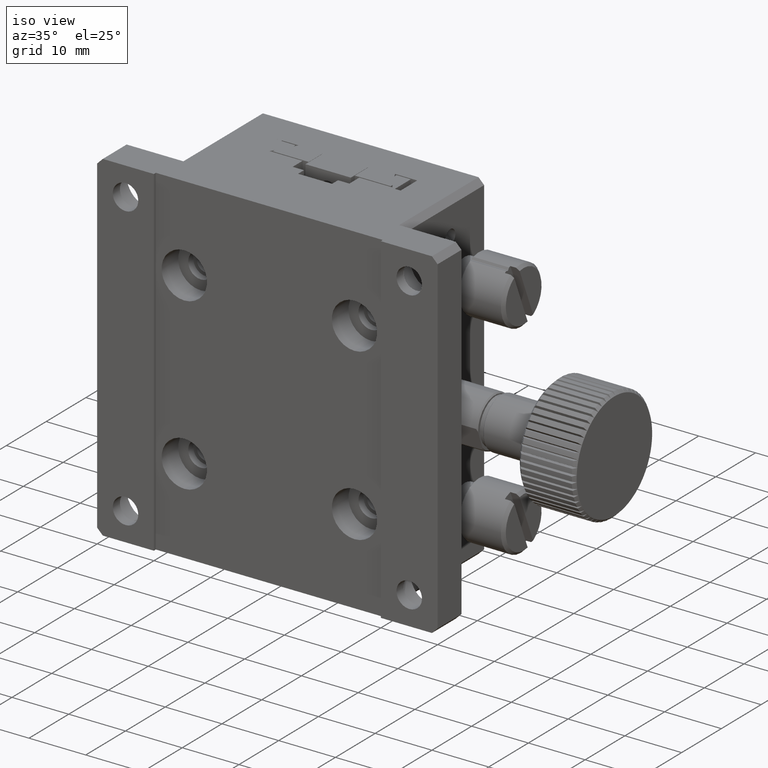
[diagram: clean part render]
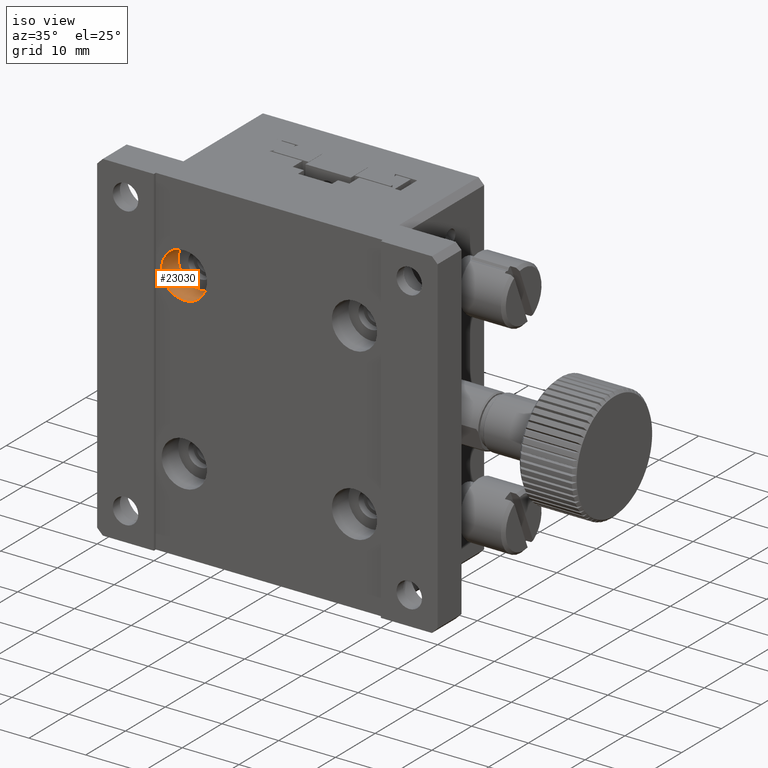
[diagram: same view with one face highlighted and labeled with its STEP entity id]
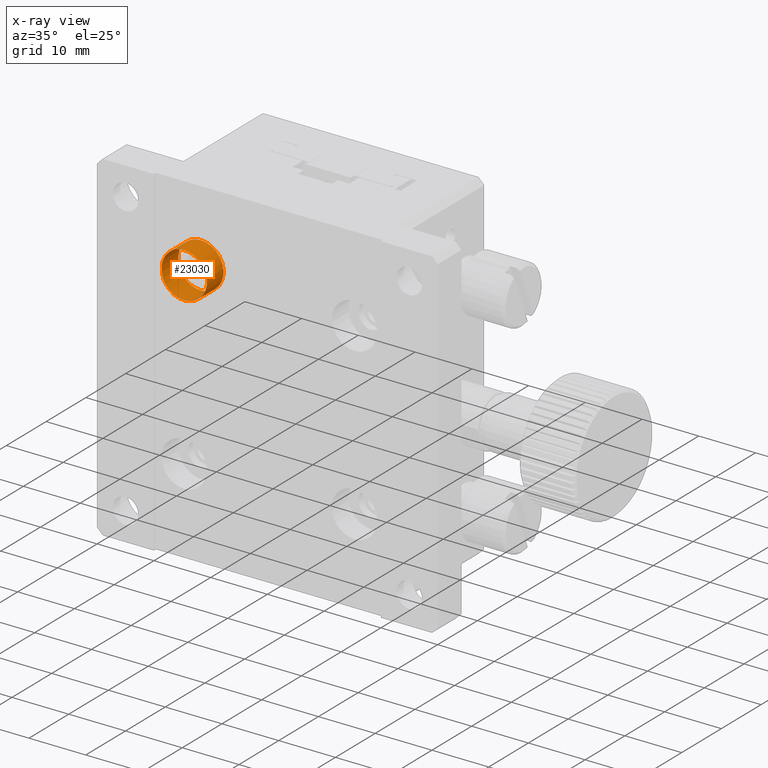
[diagram: x-ray of the same camera — body ghosted, the highlighted face saturated]
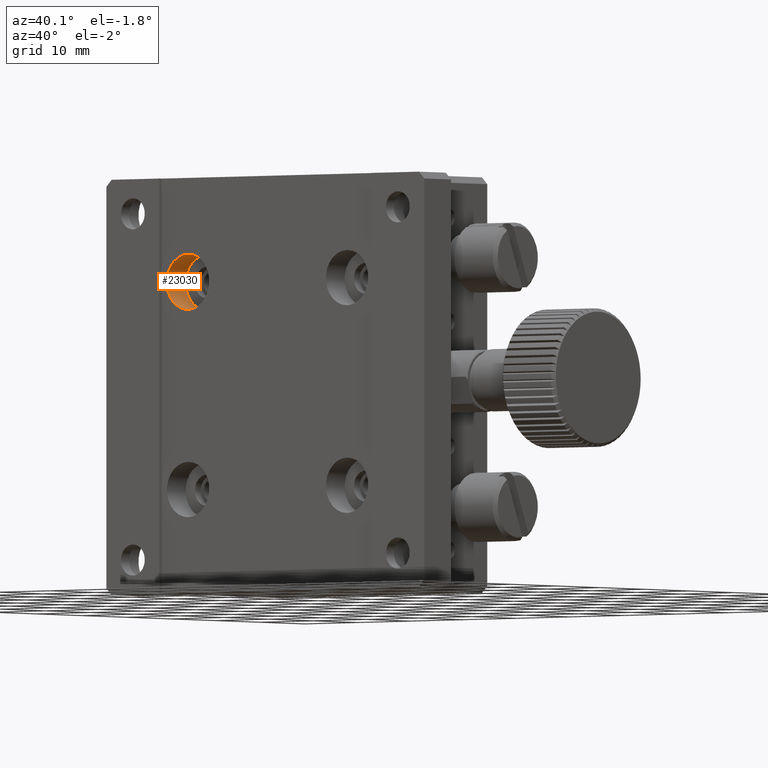
[diagram: same view with one face highlighted and labeled with its STEP entity id]
A machine part, iso view. The second image highlights one B-rep face of the part: STEP entity #23030.
The next image is the same camera in x-ray: the body ghosted, the highlighted face saturated — about 0% of this face is hidden behind the body in this view.
A second angle (auxiliary view) of the same face is appended — the face is thin or edge-on in the first view.
In plain terms, the highlighted cylindrical surface (bore or boss wall) has radius 4 mm, axis along (-0, -1, -0).
Its self-contained STEP definition (entity closure, byte-faithful):
#4610 = CARTESIAN_POINT ( 'NONE',  ( 15.00000000000001066, 0.5000000000000000000, 44.99999999999999289 ) ) ;
#8436 = AXIS2_PLACEMENT_3D ( 'NONE', #4610, #104581, #31216 ) ;
#11287 = CYLINDRICAL_SURFACE ( 'NONE', #58620, 3.999999999999996447 ) ;
#11465 = AXIS2_PLACEMENT_3D ( 'NONE', #74603, #24101, #106691 ) ;
#12369 = DIRECTION ( 'NONE',  ( 0.000000000000000000, 0.000000000000000000, -1.000000000000000000 ) ) ;
#15921 = EDGE_LOOP ( 'NONE', ( #79274 ) ) ;
#21599 = DIRECTION ( 'NONE',  ( -0.000000000000000000, -1.000000000000000000, -0.000000000000000000 ) ) ;
#23030 = ADVANCED_FACE ( 'NONE', ( #27599, #93900 ), #11287, .F. ) ;
#23659 = CIRCLE ( 'NONE', #11465, 3.999999999999996447 ) ;
#24101 = DIRECTION ( 'NONE',  ( 0.000000000000000000, 1.000000000000000000, 0.000000000000000000 ) ) ;
#27280 = VERTEX_POINT ( 'NONE', #86504 ) ;
#27599 = FACE_OUTER_BOUND ( 'NONE', #53617, .T. ) ;
#31216 = DIRECTION ( 'NONE',  ( 0.000000000000000000, 0.000000000000000000, -1.000000000000000000 ) ) ;
#36826 = CARTESIAN_POINT ( 'NONE',  ( 15.00000000000001066, 0.000000000000000000, 44.99999999999999289 ) ) ;
#41425 = CIRCLE ( 'NONE', #8436, 3.999999999999996447 ) ;
#53365 = EDGE_CURVE ( 'NONE', #27280, #27280, #41425, .T. ) ;
#53617 = EDGE_LOOP ( 'NONE', ( #53762 ) ) ;
#53762 = ORIENTED_EDGE ( 'NONE', *, *, #80495, .T. ) ;
#58620 = AXIS2_PLACEMENT_3D ( 'NONE', #36826, #21599, #12369 ) ;
#71788 = CARTESIAN_POINT ( 'NONE',  ( 15.00000000000001066, 4.700000000000000178, 40.99999999999999289 ) ) ;
#74603 = CARTESIAN_POINT ( 'NONE',  ( 15.00000000000001066, 4.700000000000000178, 44.99999999999999289 ) ) ;
#79274 = ORIENTED_EDGE ( 'NONE', *, *, #53365, .F. ) ;
#80495 = EDGE_CURVE ( 'NONE', #81029, #81029, #23659, .T. ) ;
#81029 = VERTEX_POINT ( 'NONE', #71788 ) ;
#86504 = CARTESIAN_POINT ( 'NONE',  ( 15.00000000000001066, 0.5000000000000000000, 40.99999999999999289 ) ) ;
#93900 = FACE_OUTER_BOUND ( 'NONE', #15921, .T. ) ;
#104581 = DIRECTION ( 'NONE',  ( 0.000000000000000000, 1.000000000000000000, 0.000000000000000000 ) ) ;
#106691 = DIRECTION ( 'NONE',  ( 0.000000000000000000, 0.000000000000000000, -1.000000000000000000 ) ) ;